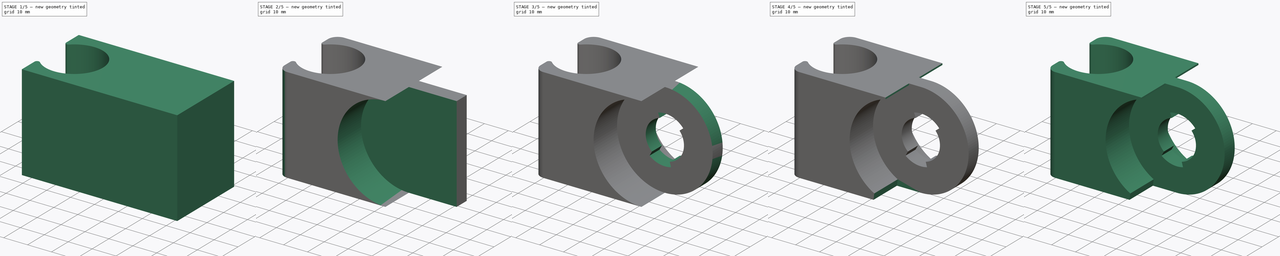
[diagram: build sequence overview — one tinted view per stage of 5, left to right]
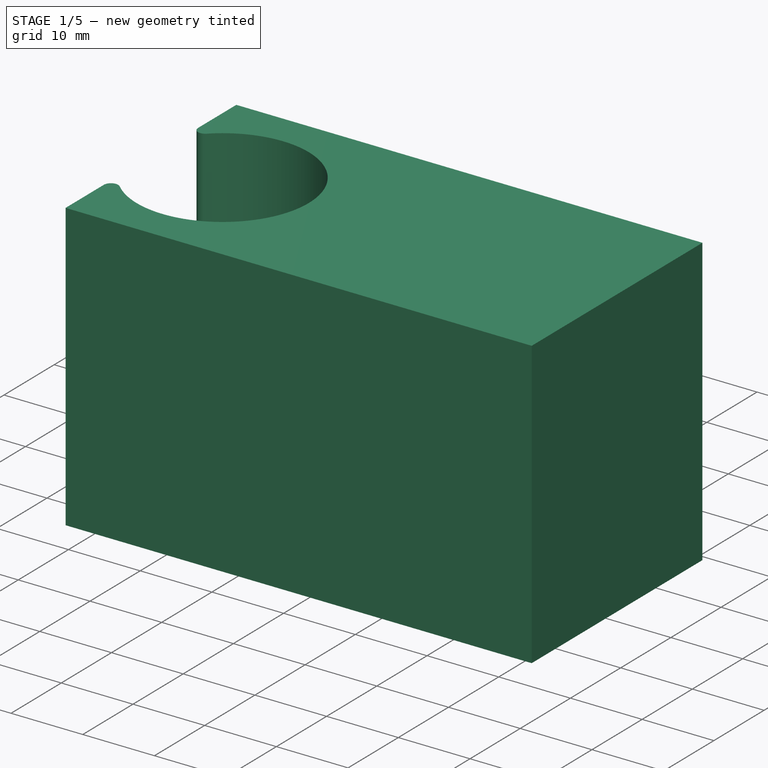
[diagram: stage 1 of 5 — iso view after this stage's code; geometry added in this stage tinted green]
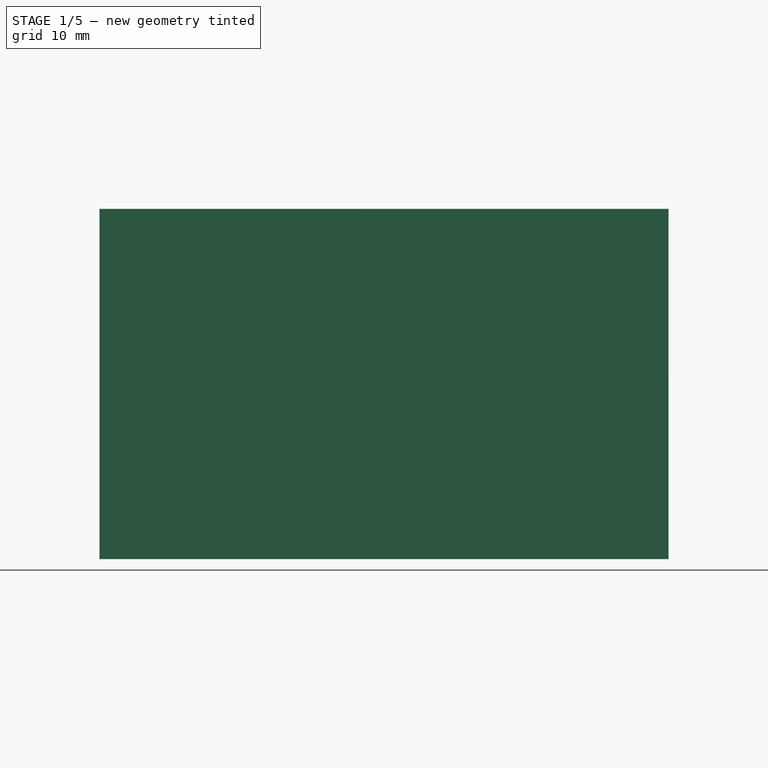
[diagram: stage 1 of 5 — front view after this stage's code; geometry added in this stage tinted green]
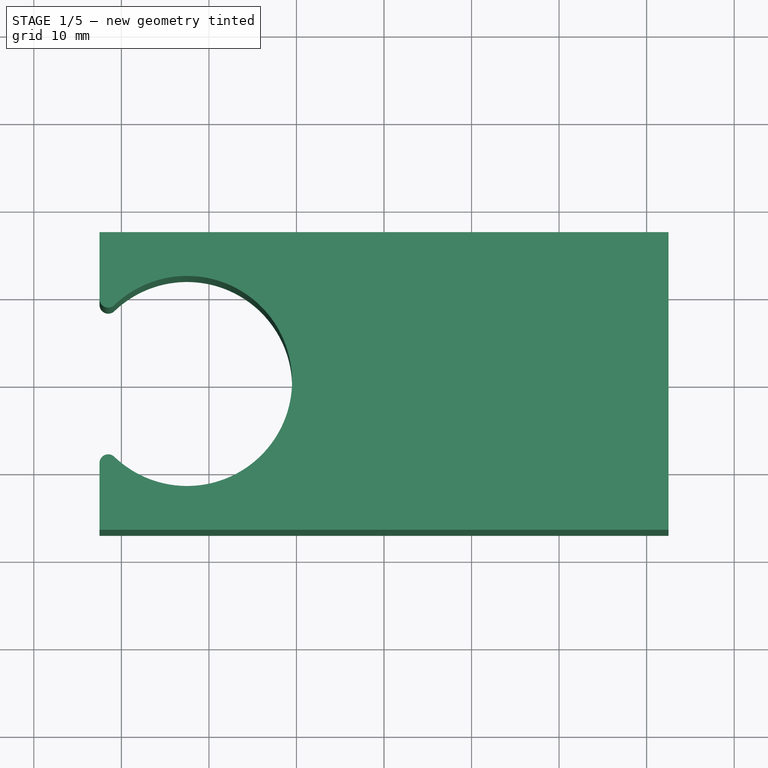
[diagram: stage 1 of 5 — top view after this stage's code; geometry added in this stage tinted green]
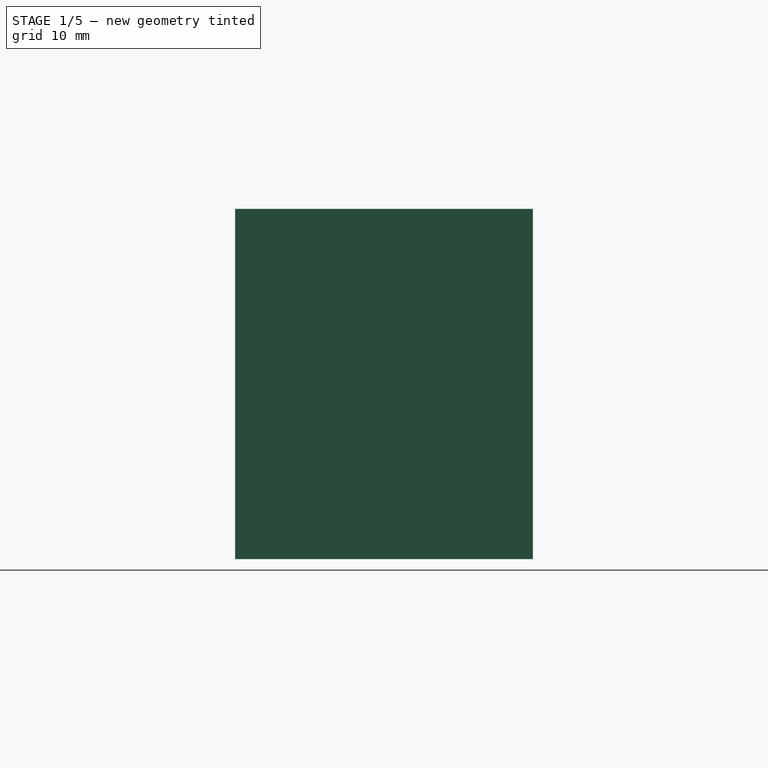
[diagram: stage 1 of 5 — right view after this stage's code; geometry added in this stage tinted green]
FCSTD DOCUMENT  (FreeCAD 0.15R4671 (Git))
Label: Shower Holder
License: All rights reserved
LicenseURL: http://en.wikipedia.org/wiki/All_rights_reserved
objects: PartDesign::Chamfer×8, PartDesign::Fillet×6, Sketcher::SketchObject×4, PartDesign::Pocket×3, PartDesign::Pad×1, PartDesign::LinearPattern×1, PartDesign::MultiTransform×1
note: 28 computed .brp shape members not serialized (recipe doc carries the construction recipe); baked Part::Feature solids carry a one-line shape summary decoded from their .brp

FEATURE [Sketcher::SketchObject] Sketch
  sketch-geometry (4):
    g0: LineSegment StartX=-32.5 StartY=17 StartZ=0 EndX=32.5 EndY=17 EndZ=0
    g1: LineSegment StartX=32.5 StartY=17 StartZ=0 EndX=32.5 EndY=-17 EndZ=0
    g2: LineSegment StartX=32.5 StartY=-17 StartZ=0 EndX=-32.5 EndY=-17 EndZ=0
    g3: LineSegment StartX=-32.5 StartY=-17 StartZ=0 EndX=-32.5 EndY=17 EndZ=0
  constraints (12):
    c: Coincident(g0,g1)
    c: Coincident(g1,g2)
    c: Coincident(g2,g3)
    c: Coincident(g3,g0)
    c: Horizontal(g0)
    c: Horizontal(g2)
    c: Vertical(g1)
    c: Vertical(g3)
    c: Symmetric(g0,g0,g-2)
    c: Symmetric(g0,g1,g-1)
    c: Distance(g0,g0) = 65
    c: Distance(g0,g1) = 34
FEATURE [PartDesign::Pad] Pad
  Length = 40
  Length2 = 100
  Midplane = true
  Sketch = -> Sketch
  Type = 0
FEATURE [Sketcher::SketchObject] Sketch001
  ExternalGeometry = -> [Pad]
  Placement = pos=(0,0,-20) rot=(1,0,0;3.14159rad)
  Support = -> Pad [Face5]
  sketch-geometry (1):
    g0: Circle CenterX=-22.5 CenterY=0 CenterZ=0 NormalX=0 NormalY=0 NormalZ=1 Radius=12
  constraints (3):
    c: PointOnObject(g0,g-1)
    c: Radius(g0) = 12
    c: DistanceX(g0,g-3) = -10
FEATURE [PartDesign::Pocket] Pocket
  Length = 5
  Sketch = -> Sketch001
  Type = 1
FEATURE [PartDesign::Fillet] Fillet
  Base = -> Pocket [Edge21]
  Radius = 1
FEATURE [PartDesign::Fillet] Fillet001
  Base = -> Fillet [Edge21]
  Radius = 1
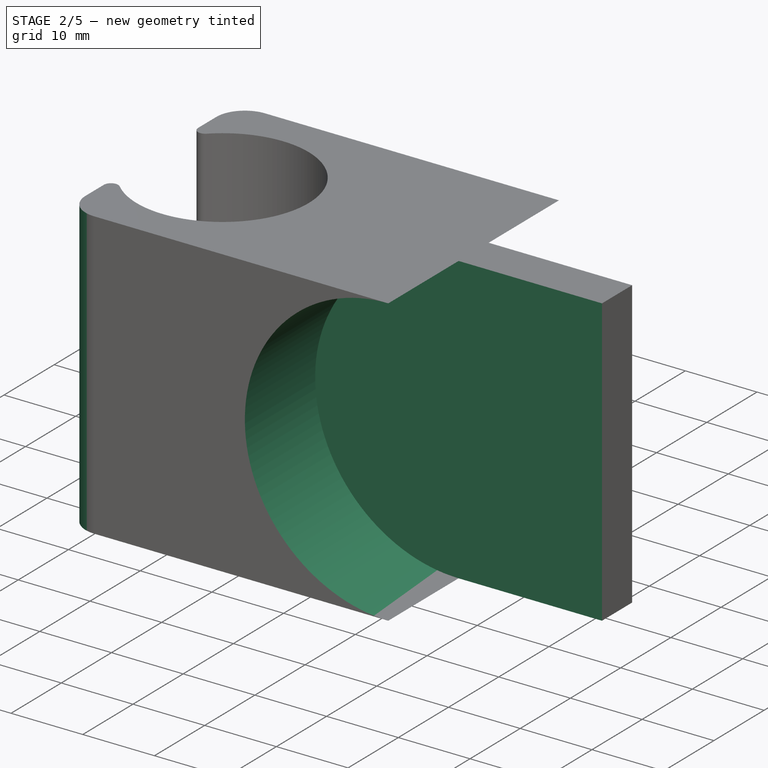
[diagram: stage 2 of 5 — iso view after this stage's code; geometry added in this stage tinted green]
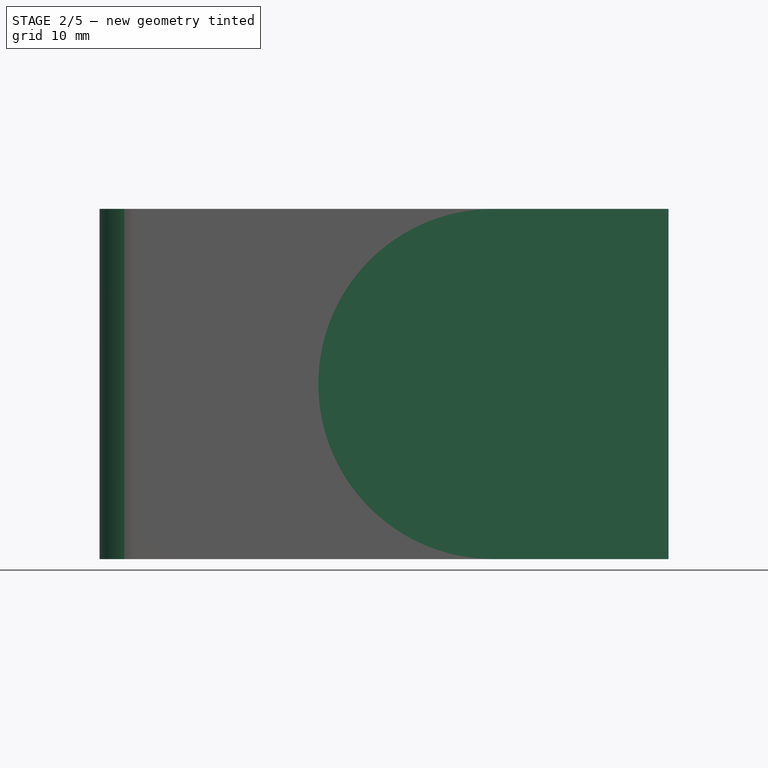
[diagram: stage 2 of 5 — front view after this stage's code; geometry added in this stage tinted green]
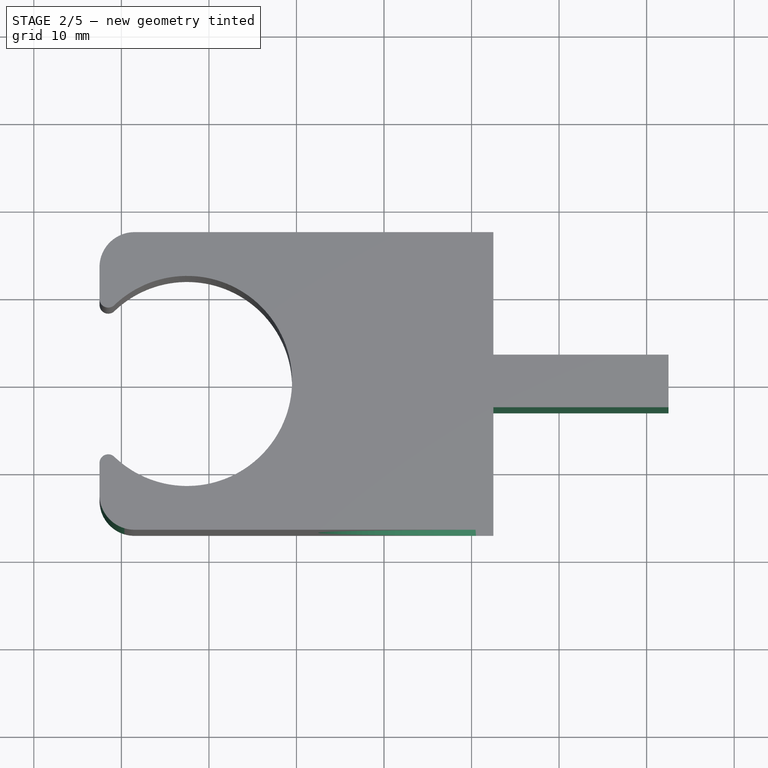
[diagram: stage 2 of 5 — top view after this stage's code; geometry added in this stage tinted green]
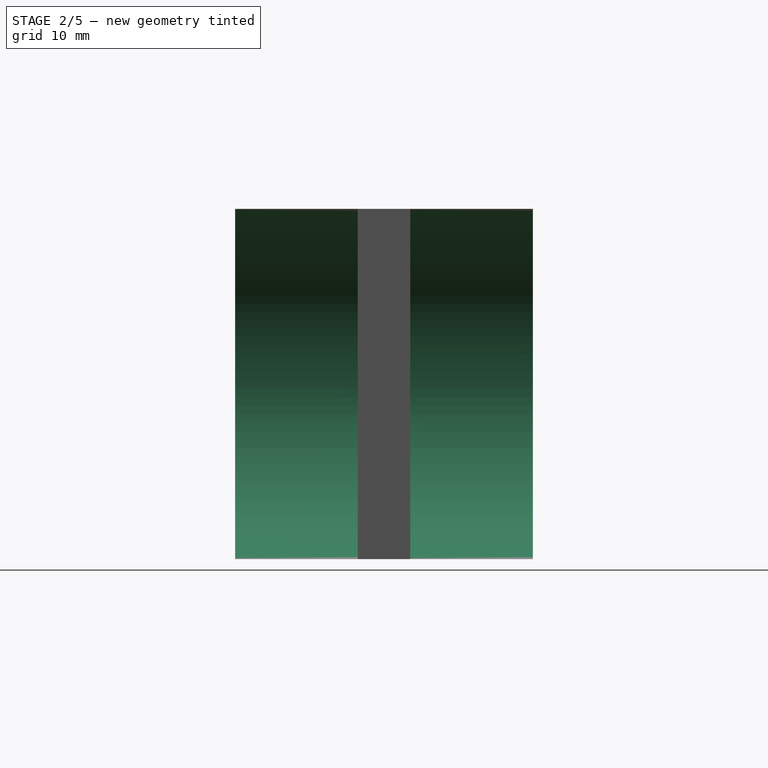
[diagram: stage 2 of 5 — right view after this stage's code; geometry added in this stage tinted green]
FEATURE [PartDesign::Fillet] Fillet002
  Base = -> Fillet001 [Edge23]
  Radius = 4
FEATURE [PartDesign::Fillet] Fillet003
  Base = -> Fillet002 [Edge26]
  Radius = 4
FEATURE [Sketcher::SketchObject] Sketch002
  ExternalGeometry = -> [Fillet003]
  Placement = pos=(0,-17,0) rot=(1,0,0;1.5708rad)
  Support = -> Fillet003 [Face6]
  sketch-geometry (5):
    g0: ArcOfCircle CenterX=12.5 CenterY=0 CenterZ=0 NormalX=0 NormalY=0 NormalZ=1 Radius=20 StartAngle=1.5708 EndAngle=4.71239
    g1: LineSegment StartX=12.5 StartY=20 StartZ=0 EndX=38.5326 EndY=20 EndZ=0
    g2: LineSegment StartX=38.5326 StartY=20 StartZ=0 EndX=38.5326 EndY=-20 EndZ=0
    g3: LineSegment StartX=38.5326 StartY=-20 StartZ=0 EndX=12.5 EndY=-20 EndZ=0
    g4: LineSegment [constr] StartX=12.5 StartY=-20 StartZ=0 EndX=12.5 EndY=20 EndZ=0
  constraints (16):
    c: PointOnObject(g0,g-1)
    c: DistanceY(g0,g-3) = 0
    c: DistanceX(g0,g-3) = -45
    c: Coincident(g1,g2)
    c: Coincident(g2,g3)
    c: Coincident(g3,g4)
    c: Coincident(g4,g1)
    c: Horizontal(g1)
    c: Horizontal(g3)
    c: Vertical(g2)
    c: Vertical(g4)
    c: DistanceY(g1,g-3) = 0
    c: DistanceY(g2,g-3) = 0
    c: DistanceX(g0,g0) = 0
    c: DistanceX(g0,g0) = 0
    c: DistanceX(g1,g0) = 0
FEATURE [PartDesign::Pocket] Pocket001
  Length = 14
  Sketch = -> Sketch002
  Type = 0
FEATURE [PartDesign::LinearPattern] LinearPattern
  Direction = -> Pocket001 [Face2]
  Length = 20
  Occurrences = 2
FEATURE [PartDesign::MultiTransform] MultiTransform
  Originals = -> [Pocket001]
  Transformations = -> [LinearPattern]
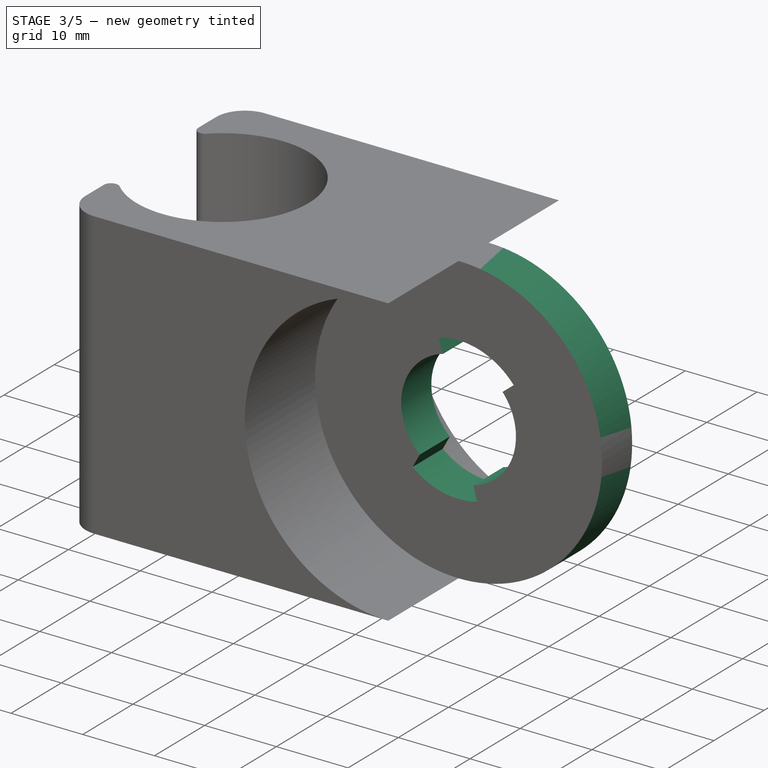
[diagram: stage 3 of 5 — iso view after this stage's code; geometry added in this stage tinted green]
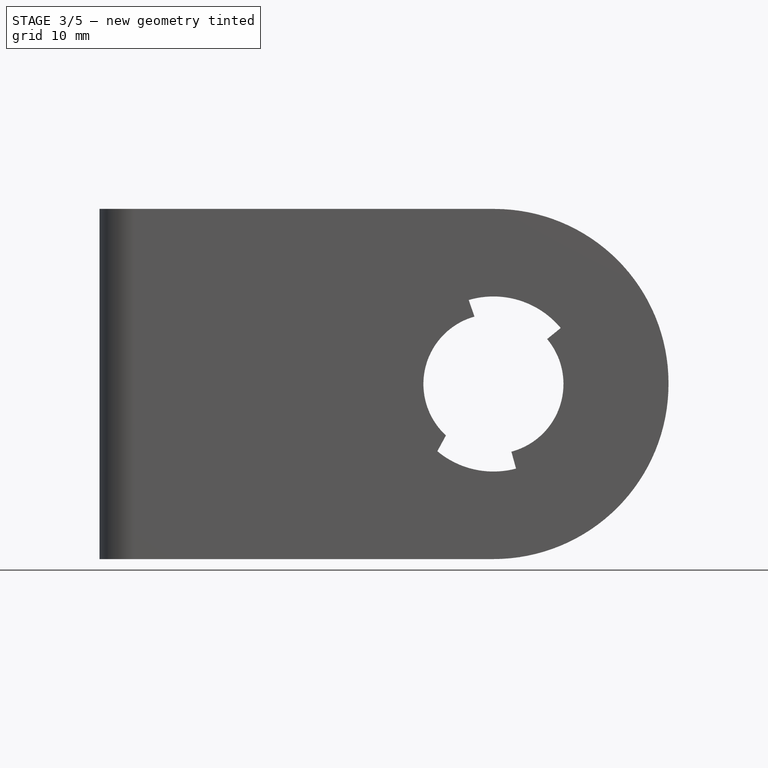
[diagram: stage 3 of 5 — front view after this stage's code; geometry added in this stage tinted green]
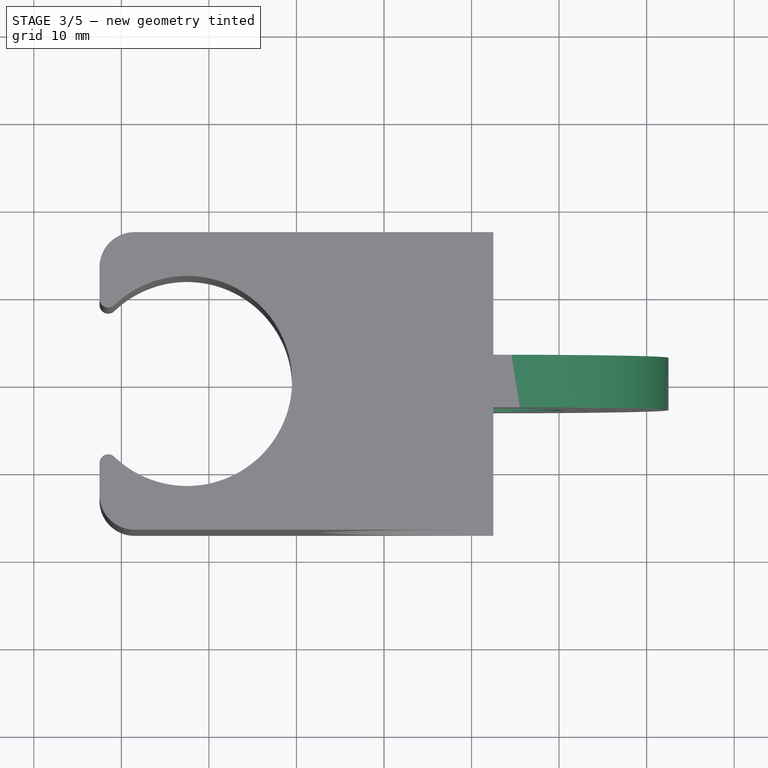
[diagram: stage 3 of 5 — top view after this stage's code; geometry added in this stage tinted green]
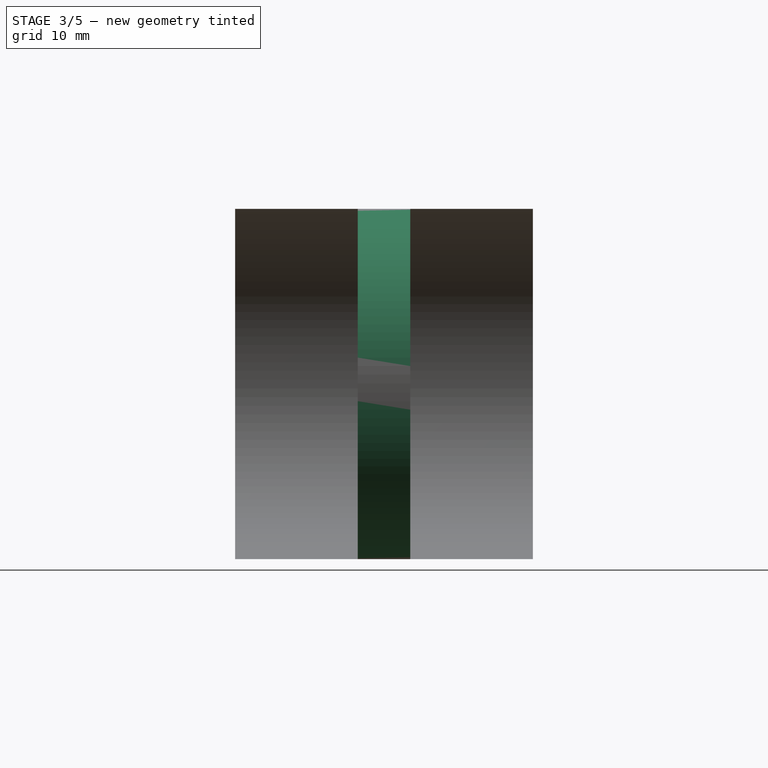
[diagram: stage 3 of 5 — right view after this stage's code; geometry added in this stage tinted green]
FEATURE [PartDesign::Fillet] Fillet004
  Base = -> MultiTransform [Edge4]
  Radius = 20
FEATURE [PartDesign::Fillet] Fillet005
  Base = -> Fillet004 [Edge45]
  Radius = 19.9
FEATURE [Sketcher::SketchObject] Sketch003
  ExternalGeometry = -> [Fillet005]
  Placement = pos=(0,-3,0) rot=(1,0,0;1.5708rad)
  Support = -> Fillet005 [Face7]
  sketch-geometry (9):
    g0: ArcOfCircle CenterX=12.5 CenterY=0 CenterZ=0 NormalX=0 NormalY=0 NormalZ=1 Radius=10 StartAngle=4.01685 EndAngle=4.97375
    g1: ArcOfCircle CenterX=12.5 CenterY=0 CenterZ=0 NormalX=0 NormalY=0 NormalZ=1 Radius=8 StartAngle=1.84504 EndAngle=3.53886
    g2: LineSegment StartX=20.1873 StartY=6.39568 StartZ=0 EndX=18.6334 EndY=5.13629 EndZ=0
    g3: LineSegment StartX=9.67925 StartY=9.59392 StartZ=0 EndX=10.3335 EndY=7.70105 EndZ=0
    g4: LineSegment StartX=15.084 StartY=-9.66038 StartZ=0 EndX=14.5513 EndY=-7.73255 EndZ=0
    g5: ArcOfCircle CenterX=12.5 CenterY=0 CenterZ=0 NormalX=0 NormalY=0 NormalZ=1 Radius=8 StartAngle=4.97169 EndAngle=6.98034
    g6: ArcOfCircle CenterX=12.5 CenterY=0 CenterZ=0 NormalX=0 NormalY=0 NormalZ=1 Radius=10 StartAngle=0.693937 EndAngle=1.85675
    g7: ArcOfCircle CenterX=12.4877 CenterY=0.0146641 CenterZ=0 NormalX=0 NormalY=0 NormalZ=1 Radius=10.0015 StartAngle=3.54115 EndAngle=4.01873
    g8: LineSegment StartX=3.27396 StartY=-3.87602 StartZ=0 EndX=5.12303 EndY=-3.09521 EndZ=0
  constraints (21):
    c: Radius(g0) = 10
    c: DistanceX(g-3,g0) = 45
    c: DistanceY(g-1,g0) = 0
    c: Radius(g1) = 8
    c: DistanceX(g1,g-3) = -45
    c: DistanceY(g-1,g1) = 0
    c: Coincident(g1,g3)
    c: Coincident(g5,g2)
    c: Equal(g1,g5)
    c: Coincident(g5,g4)
    c: Coincident(g1,g5)
    c: Coincident(g6,g3)
    c: Equal(g0,g6)
    c: Coincident(g0,g4)
    c: Coincident(g6,g2)
    c: Coincident(g0,g6)
    c: PointOnObject(g1,g8)
    c: PointOnObject(g8,g7)
    c: Angle(g7,g8,g8) = 1.5708
    c: Coincident(g7,g8)
    c: Coincident(g8,g1)
FEATURE [PartDesign::Pocket] Pocket002
  Length = 5
  Sketch = -> Sketch003
  Type = 1
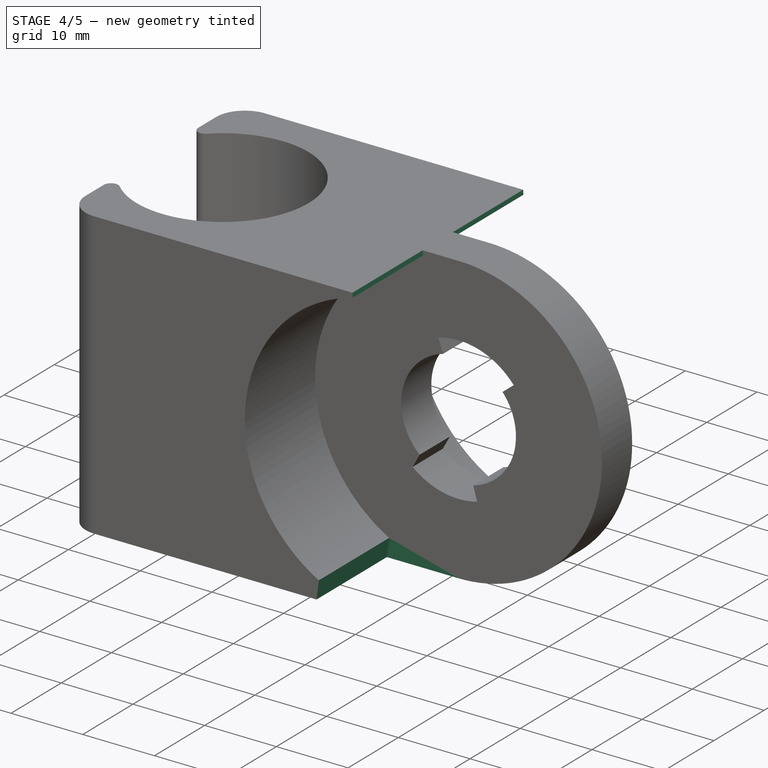
[diagram: stage 4 of 5 — iso view after this stage's code; geometry added in this stage tinted green]
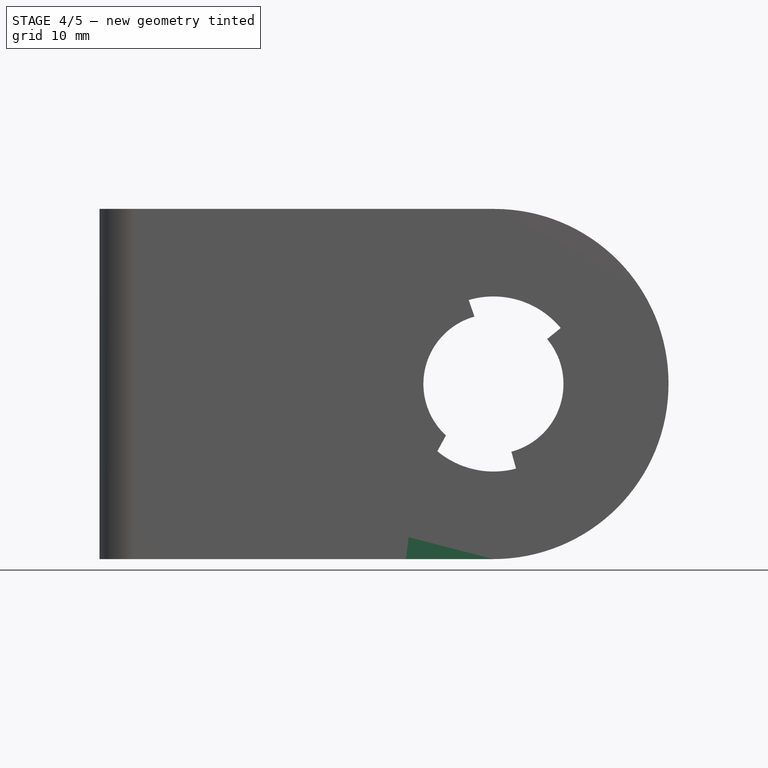
[diagram: stage 4 of 5 — front view after this stage's code; geometry added in this stage tinted green]
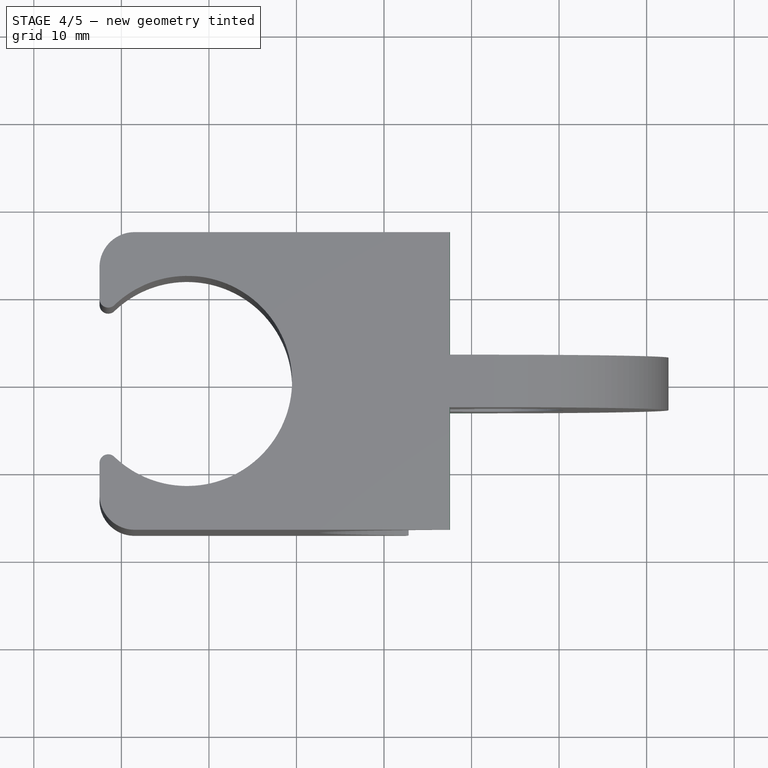
[diagram: stage 4 of 5 — top view after this stage's code; geometry added in this stage tinted green]
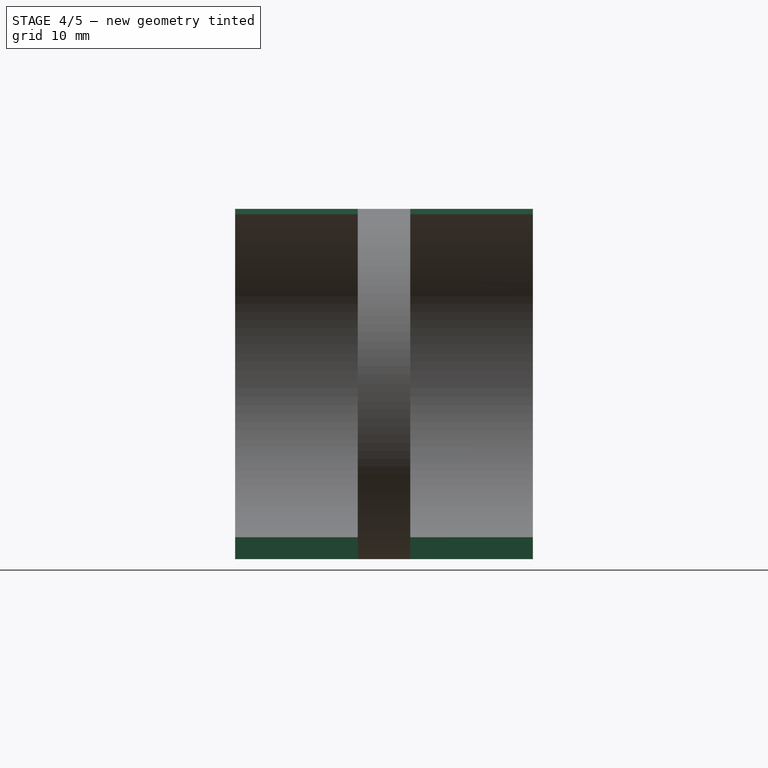
[diagram: stage 4 of 5 — right view after this stage's code; geometry added in this stage tinted green]
FEATURE [PartDesign::Chamfer] Chamfer004
  Base = -> Pocket002 [Edge53]
  Size = 10
FEATURE [PartDesign::Chamfer] Chamfer005
  Base = -> Chamfer004 [Edge18]
  Size = 5
FEATURE [PartDesign::Chamfer] Chamfer006
  Base = -> Chamfer005 [Edge33]
  Size = 5
FEATURE [PartDesign::Chamfer] Chamfer007
  Base = -> Chamfer006 [Edge73]
  Size = 10
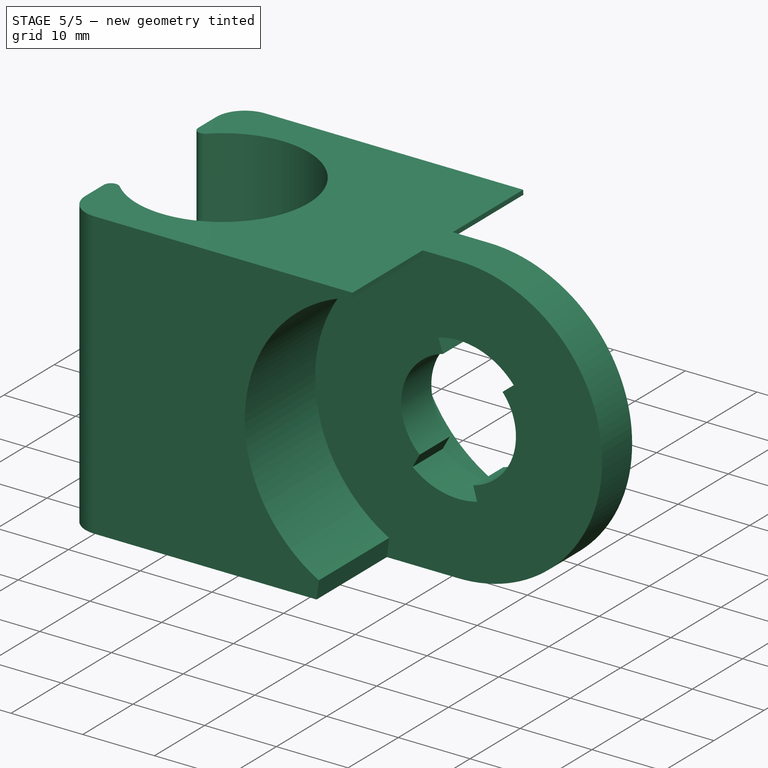
[diagram: stage 5 of 5 — iso view after this stage's code; geometry added in this stage tinted green]
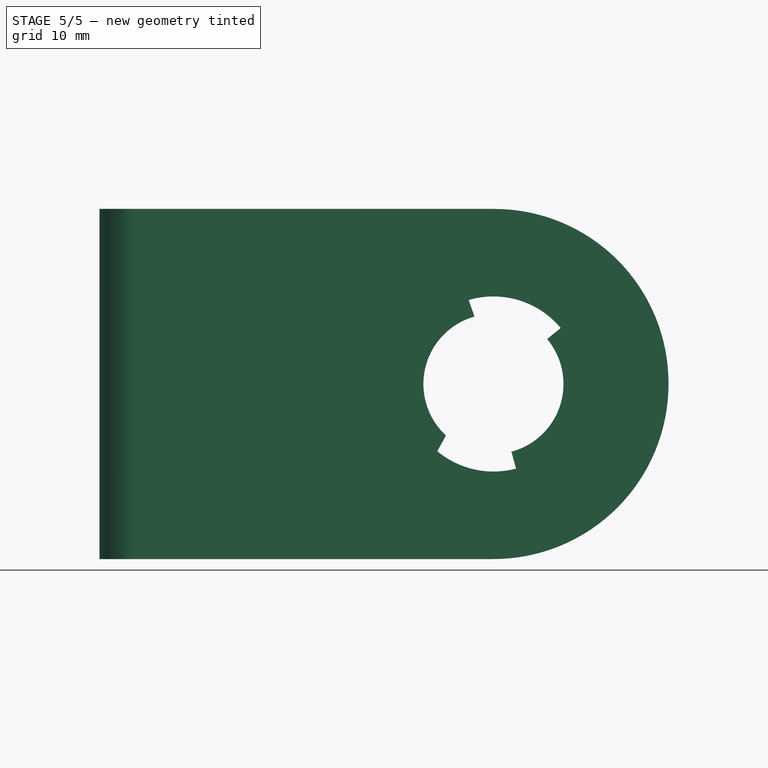
[diagram: stage 5 of 5 — front view after this stage's code; geometry added in this stage tinted green]
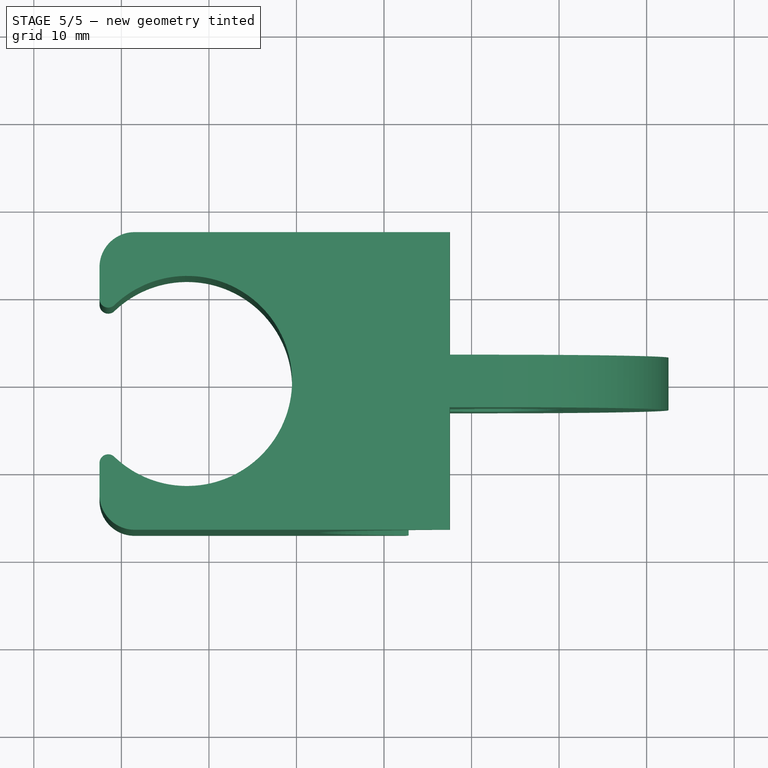
[diagram: stage 5 of 5 — top view after this stage's code; geometry added in this stage tinted green]
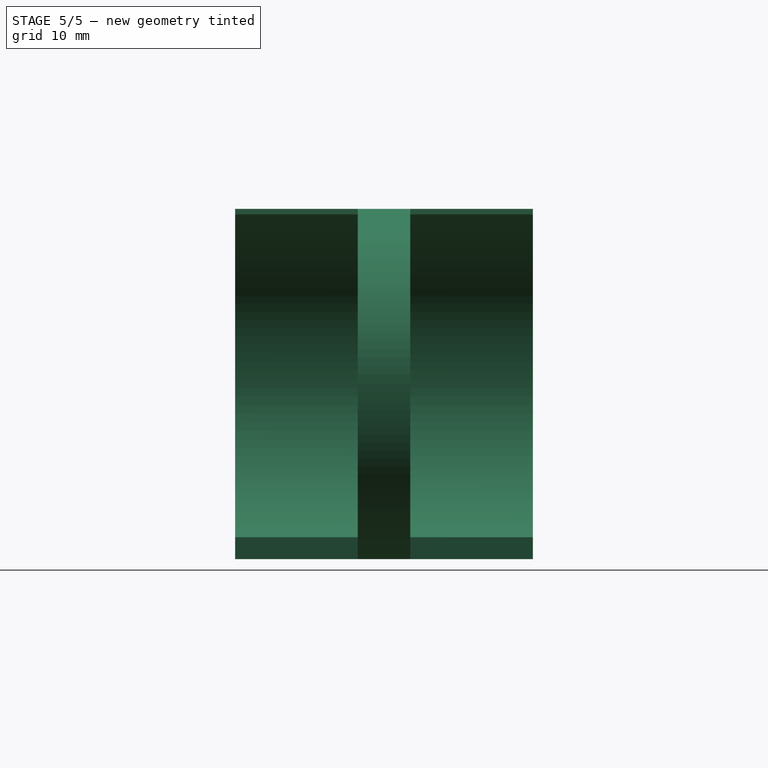
[diagram: stage 5 of 5 — right view after this stage's code; geometry added in this stage tinted green]
FEATURE [PartDesign::Chamfer] Chamfer
  Base = -> Pocket002 [Edge24]
  Size = 5
FEATURE [PartDesign::Chamfer] Chamfer001
  Base = -> Chamfer [Edge12]
  Size = 5
FEATURE [PartDesign::Chamfer] Chamfer002
  Base = -> Chamfer001 [Edge72]
  Size = 10
FEATURE [PartDesign::Chamfer] Chamfer003
  Base = -> Chamfer002 [Edge30]
  Size = 10
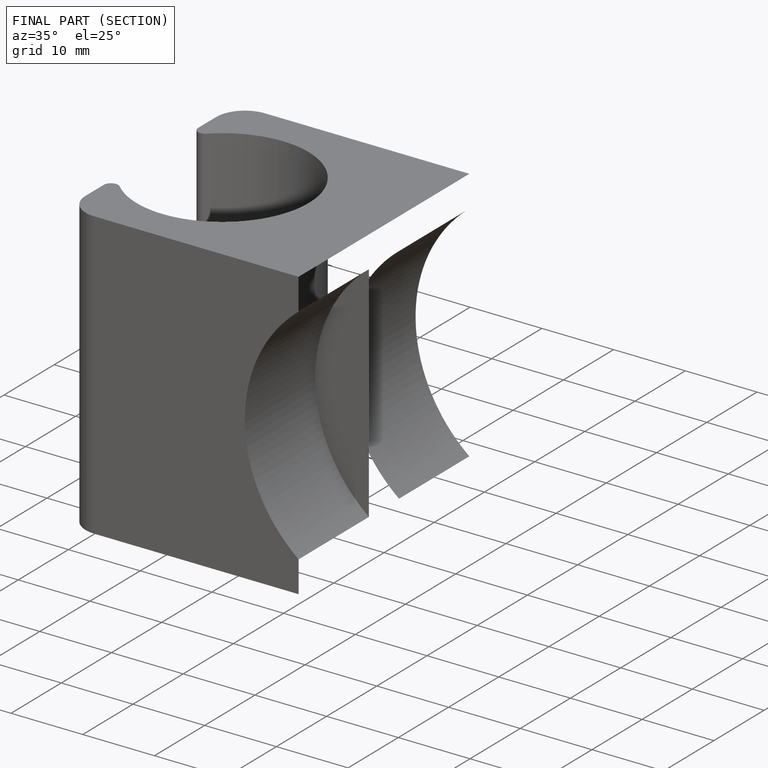
[diagram: finished part — half-section view (interior)]
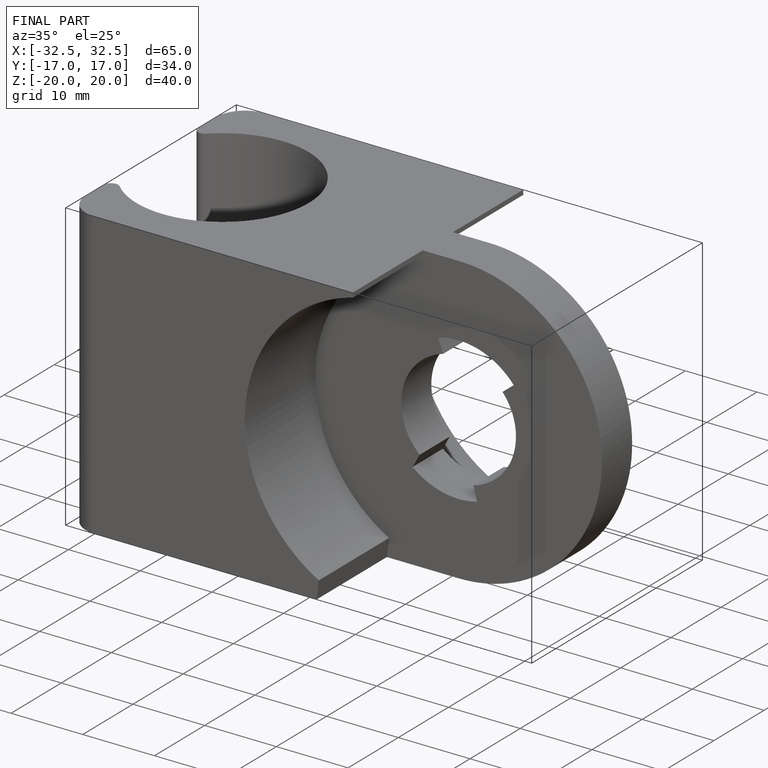
[diagram: finished part — iso view with bounding-box wireframe]
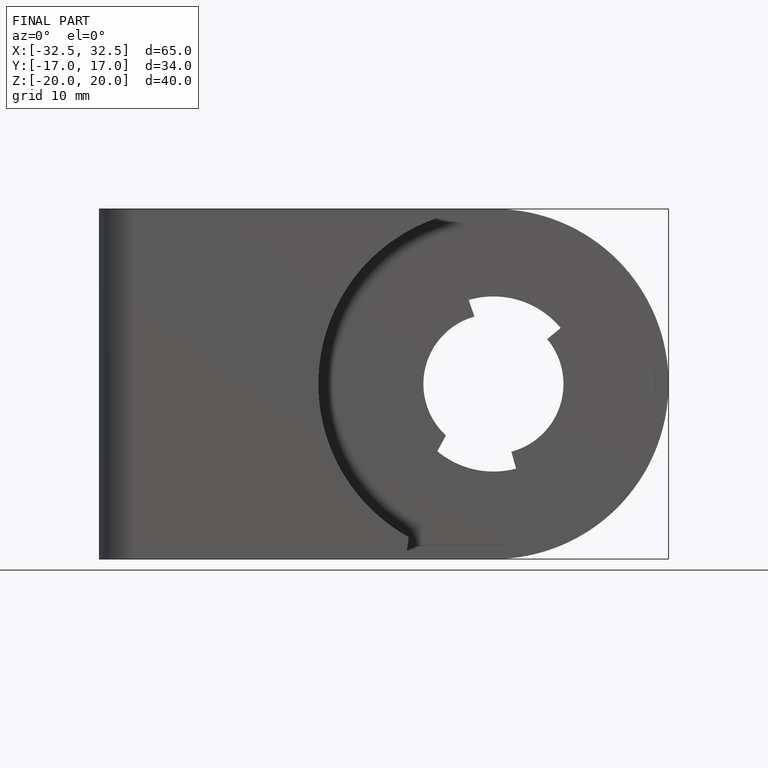
[diagram: finished part — front view with bounding-box wireframe]
